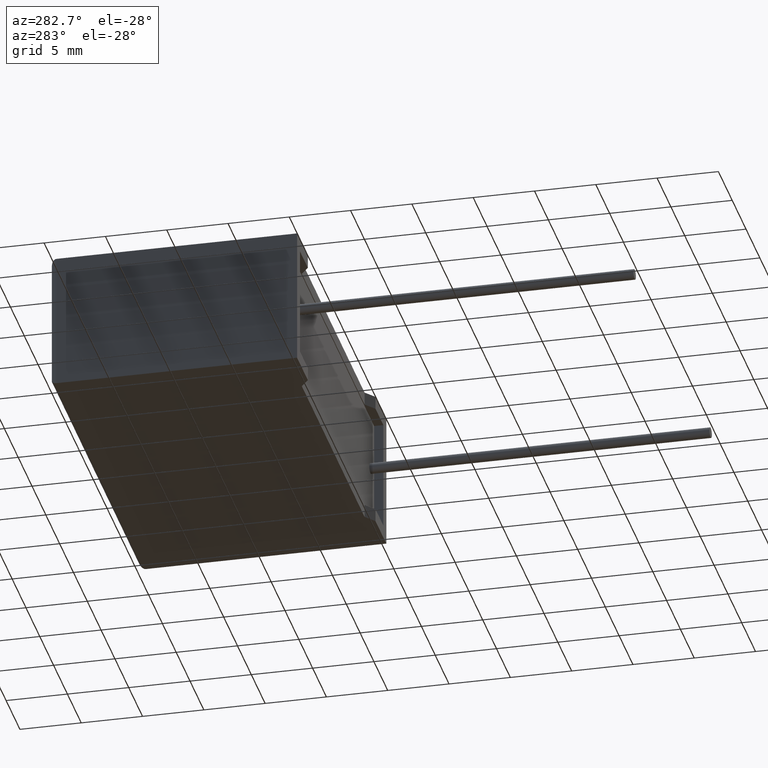
[diagram: clean part render]
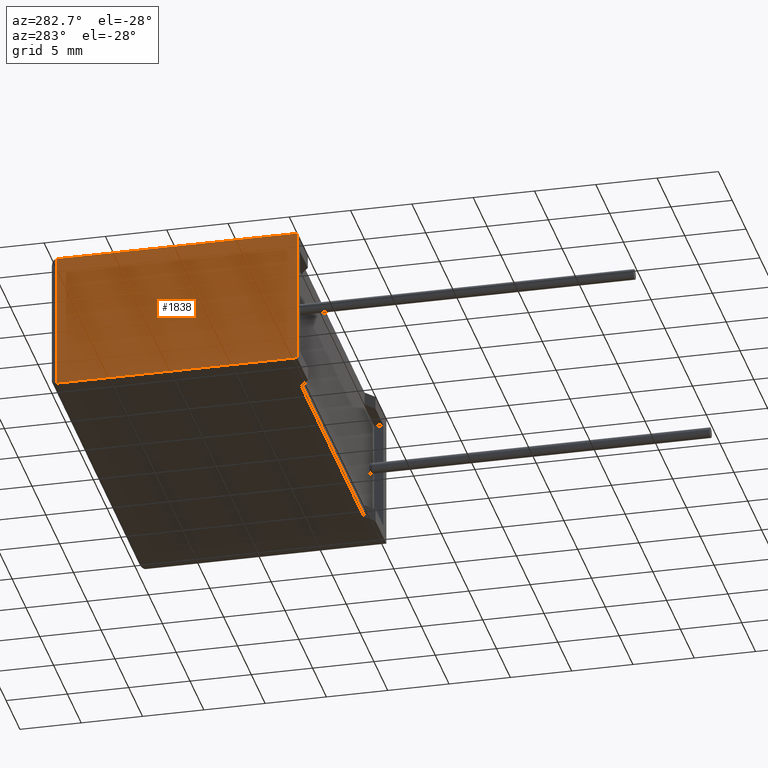
[diagram: same view with one face highlighted and labeled with its STEP entity id]
A machine part, auxiliary view. The second image highlights one B-rep face of the part: STEP entity #1838.
In plain terms, the highlighted planar face has unit normal (1, 0, 0).
Its self-contained STEP definition (entity closure, byte-faithful):
#71 = VECTOR ( 'NONE', #1326, 1000.000000000000000 ) ;
#178 = LINE ( 'NONE', #1778, #2606 ) ;
#233 = LINE ( 'NONE', #1776, #71 ) ;
#239 = ORIENTED_EDGE ( 'NONE', *, *, #2135, .T. ) ;
#246 = PLANE ( 'NONE',  #1883 ) ;
#263 = DIRECTION ( 'NONE',  ( 0.0000000000000000000, 0.0000000000000000000, -1.000000000000000000 ) ) ;
#303 = EDGE_CURVE ( 'NONE', #2409, #1451, #2569, .T. ) ;
#454 = VERTEX_POINT ( 'NONE', #1538 ) ;
#509 = EDGE_LOOP ( 'NONE', ( #1658, #906, #239, #2810 ) ) ;
#623 = DIRECTION ( 'NONE',  ( -0.0000000000000000000, -1.000000000000000000, -0.0000000000000000000 ) ) ;
#754 = VECTOR ( 'NONE', #1028, 1000.000000000000000 ) ;
#906 = ORIENTED_EDGE ( 'NONE', *, *, #2637, .T. ) ;
#948 = CARTESIAN_POINT ( 'NONE',  ( 0.0000000000000000000, 0.0000000000000000000, 11.19999999999999900 ) ) ;
#951 = VECTOR ( 'NONE', #2243, 1000.000000000000000 ) ;
#1028 = DIRECTION ( 'NONE',  ( -0.0000000000000000000, -1.000000000000000000, -0.0000000000000000000 ) ) ;
#1042 = CARTESIAN_POINT ( 'NONE',  ( 0.0000000000000000000, 19.59999999999999800, 11.19999999999999900 ) ) ;
#1070 = CARTESIAN_POINT ( 'NONE',  ( 0.0000000000000000000, 0.0000000000000000000, 0.0000000000000000000 ) ) ;
#1223 = FACE_OUTER_BOUND ( 'NONE', #509, .T. ) ;
#1326 = DIRECTION ( 'NONE',  ( 0.0000000000000000000, 0.0000000000000000000, -1.000000000000000000 ) ) ;
#1451 = VERTEX_POINT ( 'NONE', #1497 ) ;
#1497 = CARTESIAN_POINT ( 'NONE',  ( 0.0000000000000000000, 0.0000000000000000000, 11.19999999999999900 ) ) ;
#1538 = CARTESIAN_POINT ( 'NONE',  ( 0.0000000000000000000, 19.59999999999999800, 0.0000000000000000000 ) ) ;
#1577 = LINE ( 'NONE', #2734, #951 ) ;
#1658 = ORIENTED_EDGE ( 'NONE', *, *, #303, .F. ) ;
#1776 = CARTESIAN_POINT ( 'NONE',  ( 0.0000000000000000000, 19.59999999999999800, 11.19999999999999900 ) ) ;
#1778 = CARTESIAN_POINT ( 'NONE',  ( 0.0000000000000000000, 0.0000000000000000000, 0.0000000000000000000 ) ) ;
#1838 = ADVANCED_FACE ( 'NONE', ( #1223 ), #246, .F. ) ;
#1883 = AXIS2_PLACEMENT_3D ( 'NONE', #948, #2608, #263 ) ;
#2135 = EDGE_CURVE ( 'NONE', #454, #2328, #178, .T. ) ;
#2174 = EDGE_CURVE ( 'NONE', #1451, #2328, #1577, .T. ) ;
#2243 = DIRECTION ( 'NONE',  ( -0.0000000000000000000, -0.0000000000000000000, -1.000000000000000000 ) ) ;
#2328 = VERTEX_POINT ( 'NONE', #1070 ) ;
#2409 = VERTEX_POINT ( 'NONE', #1042 ) ;
#2569 = LINE ( 'NONE', #2934, #754 ) ;
#2606 = VECTOR ( 'NONE', #623, 1000.000000000000000 ) ;
#2608 = DIRECTION ( 'NONE',  ( 1.000000000000000000, 0.0000000000000000000, 0.0000000000000000000 ) ) ;
#2637 = EDGE_CURVE ( 'NONE', #2409, #454, #233, .T. ) ;
#2734 = CARTESIAN_POINT ( 'NONE',  ( 0.0000000000000000000, 0.0000000000000000000, 11.19999999999999900 ) ) ;
#2810 = ORIENTED_EDGE ( 'NONE', *, *, #2174, .F. ) ;
#2934 = CARTESIAN_POINT ( 'NONE',  ( 0.0000000000000000000, 0.0000000000000000000, 11.19999999999999900 ) ) ;